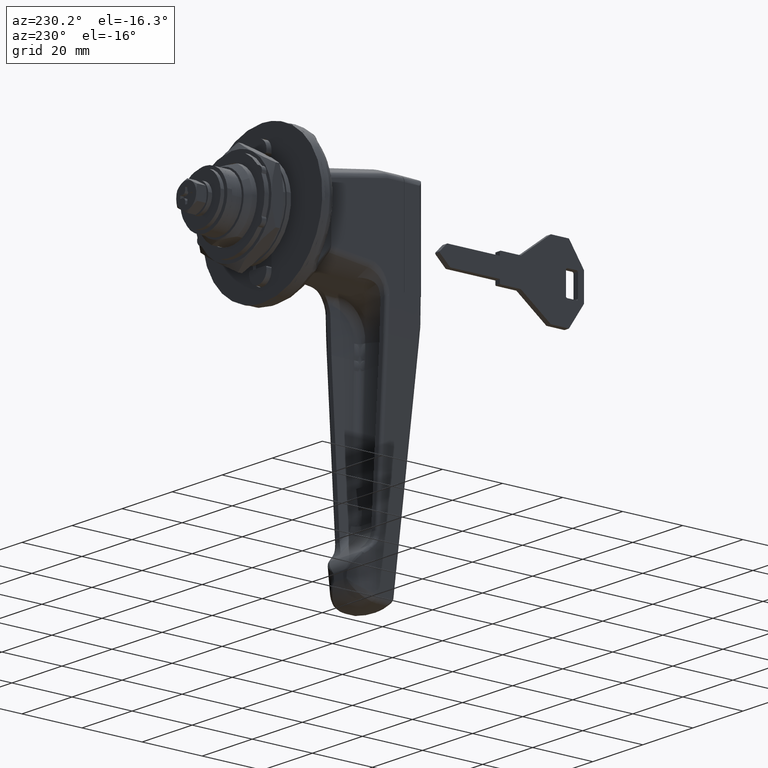
[diagram: clean part render]
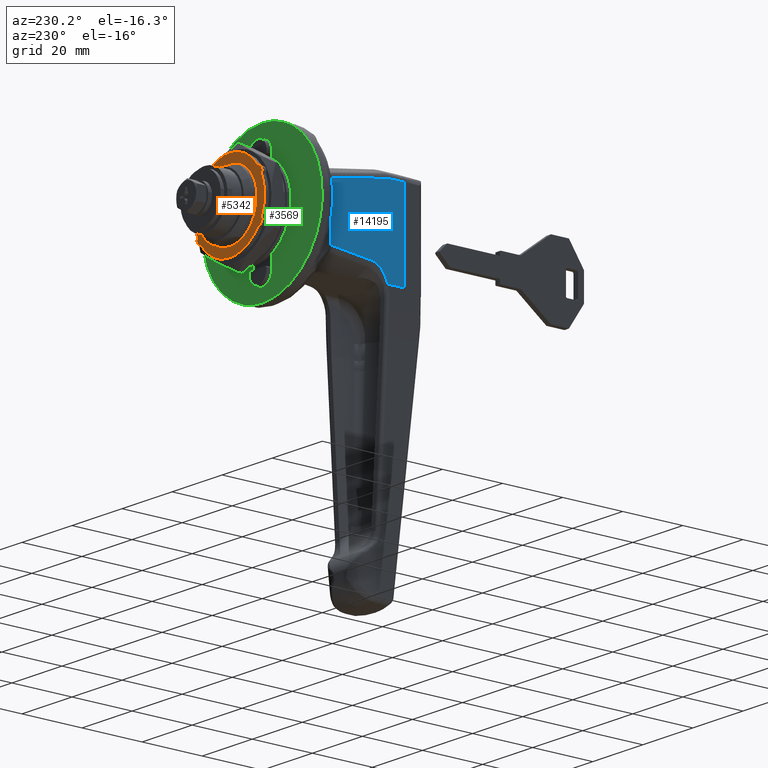
[diagram: same view with three faces highlighted in distinct colors, each labeled with its STEP entity id]
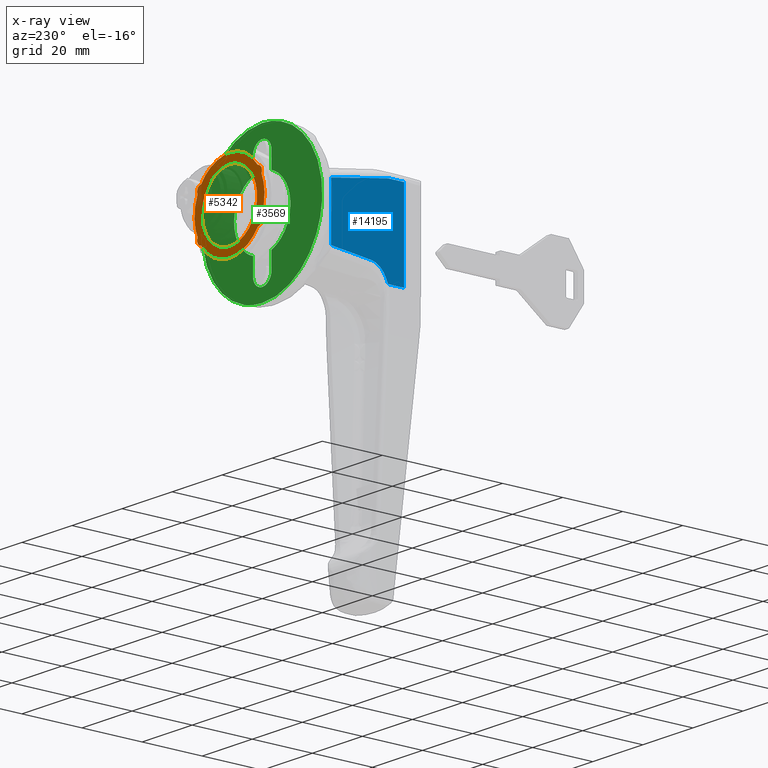
[diagram: x-ray of the same camera — body ghosted, the three highlighted faces saturated]
A machine part, auxiliary view with three faces highlighted in distinct colors.
The next image is the same camera in x-ray (body ghosted, the three faces saturated) — at least one of them is partly hidden behind the body in this view.
Their STEP definitions:

[orange] entity #5342 — the highlighted face is a freeform B-spline surface patch.
#4037=CARTESIAN_POINT('',(60.395902999999912,-10.979482782621901,-0.671533935188096));
#4038=VERTEX_POINT('',#4037);
#4044=CARTESIAN_POINT('',(60.395902999999898,0.0,-11.0));
#4045=VERTEX_POINT('',#4044);
#4046=CARTESIAN_POINT('',(60.395902999999898,0.0,-11.0));
#4047=CARTESIAN_POINT('',(60.395902999999905,-10.347766735387305,-11.000000000000002));
#4048=CARTESIAN_POINT('',(60.395902999999905,-10.979482782621902,-0.671533935188096));
#4056=(BOUNDED_CURVE()B_SPLINE_CURVE(2,(#4046,#4047,#4048),.UNSPECIFIED.,.F.,.U.)B_SPLINE_CURVE_WITH_KNOTS((3,3),(0.500000000000000,0.739332962232393),.UNSPECIFIED.)CURVE()GEOMETRIC_REPRESENTATION_ITEM()RATIONAL_B_SPLINE_CURVE((1.0,0.719603993294384,0.976072041652679))REPRESENTATION_ITEM(''));
#4057=EDGE_CURVE('',#4045,#4038,#4056,.T.);
#4059=CARTESIAN_POINT('',(60.395902999999912,10.923104789983951,1.298376581362203));
#4060=VERTEX_POINT('',#4059);
#4061=CARTESIAN_POINT('',(60.395902999999912,10.923104789983942,1.298376581362203));
#4062=CARTESIAN_POINT('',(60.395902999999883,10.999999999999996,0.651465316310329));
#4063=CARTESIAN_POINT('',(60.395902999999898,11.0,0.0));
#4064=CARTESIAN_POINT('',(60.395902999999898,11.0,-11.0));
#4065=CARTESIAN_POINT('',(60.395902999999898,0.0,-11.0));
#4073=(BOUNDED_CURVE()B_SPLINE_CURVE(2,(#4061,#4062,#4063,#4064,#4065),.UNSPECIFIED.,.F.,.U.)B_SPLINE_CURVE_WITH_KNOTS((3,2,3),(0.229562473511378,0.250000000000000,0.500000000000000),.UNSPECIFIED.)CURVE()GEOMETRIC_REPRESENTATION_ITEM()RATIONAL_B_SPLINE_CURVE((0.956026754179524,0.976055948328650,1.0,0.707106781186548,1.0))REPRESENTATION_ITEM(''));
#4074=EDGE_CURVE('',#4060,#4045,#4073,.T.);
#4118=CARTESIAN_POINT('',(60.395902999999898,0.0,11.0));
#4119=VERTEX_POINT('',#4118);
#4120=CARTESIAN_POINT('',(60.395902999999898,0.0,11.0));
#4121=CARTESIAN_POINT('',(60.395902999999905,9.769919785216697,11.0));
#4122=CARTESIAN_POINT('',(60.395902999999912,10.923104789983942,1.298376581362203));
#4130=(BOUNDED_CURVE()B_SPLINE_CURVE(2,(#4120,#4121,#4122),.UNSPECIFIED.,.F.,.U.)B_SPLINE_CURVE_WITH_KNOTS((3,3),(0.0,0.229562473511378),.UNSPECIFIED.)CURVE()GEOMETRIC_REPRESENTATION_ITEM()RATIONAL_B_SPLINE_CURVE((1.0,0.731050832857898,0.956026754179524))REPRESENTATION_ITEM(''));
#4131=EDGE_CURVE('',#4119,#4060,#4130,.T.);
#4133=CARTESIAN_POINT('',(60.395902999999912,-10.979482782621901,-0.671533935188096));
#4134=CARTESIAN_POINT('',(60.395902999999898,-10.999999999999998,-0.336080396590001));
#4135=CARTESIAN_POINT('',(60.395902999999898,-11.0,0.0));
#4136=CARTESIAN_POINT('',(60.395902999999898,-11.0,11.0));
#4137=CARTESIAN_POINT('',(60.395902999999898,0.0,11.0));
#4145=(BOUNDED_CURVE()B_SPLINE_CURVE(2,(#4133,#4134,#4135,#4136,#4137),.UNSPECIFIED.,.F.,.U.)B_SPLINE_CURVE_WITH_KNOTS((3,2,3),(0.739332962232392,0.750000000000000,1.0),.UNSPECIFIED.)CURVE()GEOMETRIC_REPRESENTATION_ITEM()RATIONAL_B_SPLINE_CURVE((0.976072041652679,0.987502787892163,1.0,0.707106781186548,1.0))REPRESENTATION_ITEM(''));
#4146=EDGE_CURVE('',#4038,#4119,#4145,.T.);
#4414=CARTESIAN_POINT('',(60.395902999999898,-12.773809982891500,5.729727047433930));
#4415=VERTEX_POINT('',#4414);
#4421=CARTESIAN_POINT('',(60.395902999999898,-11.348994046675420,8.197580640393969));
#4422=VERTEX_POINT('',#4421);
#4423=CARTESIAN_POINT('',(60.395902999999898,-11.348994046675420,8.197580640393980));
#4424=CARTESIAN_POINT('',(60.395902999999898,-12.269609458662067,8.148412596946514));
#4425=CARTESIAN_POINT('',(60.395902999999898,-12.730573186433530,7.350000000000032));
#4426=CARTESIAN_POINT('',(60.395902999999898,-13.191536914204997,6.551587403053548));
#4427=CARTESIAN_POINT('',(60.395902999999898,-12.773809982891590,5.729727047433887));
#4435=(BOUNDED_CURVE()B_SPLINE_CURVE(2,(#4423,#4424,#4425,#4426,#4427),.UNSPECIFIED.,.F.,.U.)B_SPLINE_CURVE_WITH_KNOTS((3,2,3),(0.0,0.500000000000000,1.0),.UNSPECIFIED.)CURVE()GEOMETRIC_REPRESENTATION_ITEM()RATIONAL_B_SPLINE_CURVE((1.0,0.879054921630884,1.0,0.879054921630884,1.0))REPRESENTATION_ITEM(''));
#4436=EDGE_CURVE('',#4422,#4415,#4435,.T.);
#4461=CARTESIAN_POINT('',(60.395902999999898,-12.773810244207160,-5.729727030582530));
#4462=VERTEX_POINT('',#4461);
#4468=CARTESIAN_POINT('',(60.395902999999898,-12.773809982891500,5.729727047433930));
#4469=CARTESIAN_POINT('',(60.395902999999905,-15.343894784484002,0.000000067032631));
#4470=CARTESIAN_POINT('',(60.395902999999898,-12.773810244207169,-5.729727030582525));
#4478=(BOUNDED_CURVE()B_SPLINE_CURVE(2,(#4468,#4469,#4470),.UNSPECIFIED.,.F.,.U.)CURVE()GEOMETRIC_REPRESENTATION_ITEM()QUASI_UNIFORM_CURVE()RATIONAL_B_SPLINE_CURVE((1.0,0.912415015655414,1.0))REPRESENTATION_ITEM(''));
#4479=EDGE_CURVE('',#4415,#4462,#4478,.T.);
#4500=CARTESIAN_POINT('',(60.395902999999898,-11.348994046675420,-8.197580640393980));
#4501=VERTEX_POINT('',#4500);
#4507=CARTESIAN_POINT('',(60.395902999999898,-12.773810244207160,-5.729727030582530));
#4508=CARTESIAN_POINT('',(60.395902999999898,-13.191536895913377,-6.551587490799718));
#4509=CARTESIAN_POINT('',(60.395902999999898,-12.730573160588470,-7.350000044764986));
#4510=CARTESIAN_POINT('',(60.395902999999898,-12.269609425263557,-8.148412598730255));
#4511=CARTESIAN_POINT('',(60.395902999999898,-11.348994046675420,-8.197580640393980));
#4519=(BOUNDED_CURVE()B_SPLINE_CURVE(2,(#4507,#4508,#4509,#4510,#4511),.UNSPECIFIED.,.F.,.U.)B_SPLINE_CURVE_WITH_KNOTS((3,2,3),(0.0,0.500000000000000,1.0),.UNSPECIFIED.)CURVE()GEOMETRIC_REPRESENTATION_ITEM()RATIONAL_B_SPLINE_CURVE((1.0,0.879054928878454,1.0,0.879054928878454,1.0))REPRESENTATION_ITEM(''));
#4520=EDGE_CURVE('',#4462,#4501,#4519,.T.);
#4541=CARTESIAN_POINT('',(60.395902999999898,11.348994287338440,-8.197580659314040));
#4542=VERTEX_POINT('',#4541);
#4548=CARTESIAN_POINT('',(60.395902999999898,-11.348994046675420,-8.197580640393980));
#4549=CARTESIAN_POINT('',(60.395902999999905,-7.157803374540727,-14.000000032102946));
#4550=CARTESIAN_POINT('',(60.395902999999898,0.000000062790389,-14.0));
#4551=CARTESIAN_POINT('',(60.395902999999905,7.157803500121501,-13.999999967897057));
#4552=CARTESIAN_POINT('',(60.395902999999898,11.348994287338440,-8.197580659314035));
#4560=(BOUNDED_CURVE()B_SPLINE_CURVE(2,(#4548,#4549,#4550,#4551,#4552),.UNSPECIFIED.,.F.,.U.)B_SPLINE_CURVE_WITH_KNOTS((3,2,3),(0.0,0.500000000000000,1.0),.UNSPECIFIED.)CURVE()GEOMETRIC_REPRESENTATION_ITEM()RATIONAL_B_SPLINE_CURVE((1.0,0.890376740290604,1.0,0.890376740290604,1.0))REPRESENTATION_ITEM(''));
#4561=EDGE_CURVE('',#4501,#4542,#4560,.T.);
#4582=CARTESIAN_POINT('',(60.395902999999898,12.773809982891819,-5.729727047433920));
#4583=VERTEX_POINT('',#4582);
#4589=CARTESIAN_POINT('',(60.395902999999898,11.348994287338440,-8.197580659314040));
#4590=CARTESIAN_POINT('',(60.395902999999898,12.269609613398478,-8.148412458716477));
#4591=CARTESIAN_POINT('',(60.395902999999898,12.730573246261550,-7.349999896375232));
#4592=CARTESIAN_POINT('',(60.395902999999898,13.191536879124621,-6.551587334033987));
#4593=CARTESIAN_POINT('',(60.395902999999898,12.773809982891830,-5.729727047433920));
#4601=(BOUNDED_CURVE()B_SPLINE_CURVE(2,(#4589,#4590,#4591,#4592,#4593),.UNSPECIFIED.,.F.,.U.)B_SPLINE_CURVE_WITH_KNOTS((3,2,3),(0.0,0.500000000000000,1.0),.UNSPECIFIED.)CURVE()GEOMETRIC_REPRESENTATION_ITEM()RATIONAL_B_SPLINE_CURVE((1.0,0.879054938408031,1.0,0.879054938408031,1.0))REPRESENTATION_ITEM(''));
#4602=EDGE_CURVE('',#4542,#4583,#4601,.T.);
#4623=CARTESIAN_POINT('',(60.395902999999898,12.773810244207160,5.729727030582550));
#4624=VERTEX_POINT('',#4623);
#4630=CARTESIAN_POINT('',(60.395902999999898,12.773809982891819,-5.729727047433920));
#4631=CARTESIAN_POINT('',(60.395902999999898,15.343894784483973,-0.000000067032536));
#4632=CARTESIAN_POINT('',(60.395902999999898,12.773810244207160,5.729727030582547));
#4640=(BOUNDED_CURVE()B_SPLINE_CURVE(2,(#4630,#4631,#4632),.UNSPECIFIED.,.F.,.U.)CURVE()GEOMETRIC_REPRESENTATION_ITEM()QUASI_UNIFORM_CURVE()RATIONAL_B_SPLINE_CURVE((1.0,0.912415015655416,1.0))REPRESENTATION_ITEM(''));
#4641=EDGE_CURVE('',#4583,#4624,#4640,.T.);
#4662=CARTESIAN_POINT('',(60.395902999999898,11.348994046675760,8.197580640393980));
#4663=VERTEX_POINT('',#4662);
#4669=CARTESIAN_POINT('',(60.395902999999898,12.773810244207160,5.729727030582550));
#4670=CARTESIAN_POINT('',(60.395902999999898,13.191536895913595,6.551587490799612));
#4671=CARTESIAN_POINT('',(60.395902999999898,12.730573160588740,7.350000044764898));
#4672=CARTESIAN_POINT('',(60.395902999999898,12.269609425263893,8.148412598730184));
#4673=CARTESIAN_POINT('',(60.395902999999898,11.348994046675760,8.197580640393973));
#4681=(BOUNDED_CURVE()B_SPLINE_CURVE(2,(#4669,#4670,#4671,#4672,#4673),.UNSPECIFIED.,.F.,.U.)B_SPLINE_CURVE_WITH_KNOTS((3,2,3),(0.0,0.500000000000000,1.0),.UNSPECIFIED.)CURVE()GEOMETRIC_REPRESENTATION_ITEM()RATIONAL_B_SPLINE_CURVE((1.0,0.879054928878457,1.0,0.879054928878457,1.0))REPRESENTATION_ITEM(''));
#4682=EDGE_CURVE('',#4624,#4663,#4681,.T.);
#4704=CARTESIAN_POINT('',(60.395902999999898,11.348994046675760,8.197580640393980));
#4705=CARTESIAN_POINT('',(60.395902999999905,7.157803397729381,14.000000000000005));
#4706=CARTESIAN_POINT('',(60.395902999999898,0.0,14.0));
#4707=CARTESIAN_POINT('',(60.395902999999905,-7.157803397729263,13.999999999999993));
#4708=CARTESIAN_POINT('',(60.395902999999898,-11.348994046675420,8.197580640393969));
#4716=(BOUNDED_CURVE()B_SPLINE_CURVE(2,(#4704,#4705,#4706,#4707,#4708),.UNSPECIFIED.,.F.,.U.)B_SPLINE_CURVE_WITH_KNOTS((3,2,3),(0.0,0.500000000000000,1.0),.UNSPECIFIED.)CURVE()GEOMETRIC_REPRESENTATION_ITEM()RATIONAL_B_SPLINE_CURVE((1.0,0.890376741311448,1.0,0.890376741311448,1.0))REPRESENTATION_ITEM(''));
#4717=EDGE_CURVE('',#4663,#4422,#4716,.T.);
#5321=CARTESIAN_POINT('',(60.395902999999898,-15.398600147824890,15.398599945730570));
#5322=CARTESIAN_POINT('',(60.395902999999890,-15.398600147824890,-15.398600696749090));
#5323=CARTESIAN_POINT('',(60.395902999999898,15.398600648503971,15.398599945730570));
#5324=CARTESIAN_POINT('',(60.395902999999890,15.398600648503971,-15.398600696749090));
#5325=B_SPLINE_SURFACE_WITH_KNOTS('',1,1,((#5321,#5323),(#5322,#5324)),.UNSPECIFIED.,.F.,.F.,.U.,(2,2),(2,2),(0.0,30.797200642479659),(0.0,30.797200796328859),.UNSPECIFIED.);
#5326=ORIENTED_EDGE('',*,*,#4717,.T.);
#5327=ORIENTED_EDGE('',*,*,#4436,.T.);
#5328=ORIENTED_EDGE('',*,*,#4479,.T.);
#5329=ORIENTED_EDGE('',*,*,#4520,.T.);
#5330=ORIENTED_EDGE('',*,*,#4561,.T.);
#5331=ORIENTED_EDGE('',*,*,#4602,.T.);
#5332=ORIENTED_EDGE('',*,*,#4641,.T.);
#5333=ORIENTED_EDGE('',*,*,#4682,.T.);
#5334=EDGE_LOOP('',(#5326,#5327,#5328,#5329,#5330,#5331,#5332,#5333));
#5335=FACE_OUTER_BOUND('',#5334,.T.);
#5336=ORIENTED_EDGE('',*,*,#4057,.T.);
#5337=ORIENTED_EDGE('',*,*,#4146,.T.);
#5338=ORIENTED_EDGE('',*,*,#4131,.T.);
#5339=ORIENTED_EDGE('',*,*,#4074,.T.);
#5340=EDGE_LOOP('',(#5336,#5337,#5338,#5339));
#5341=FACE_BOUND('',#5340,.T.);
#5342=ADVANCED_FACE('',(#5335,#5341),#5325,.T.);

[blue] entity #14195 — the highlighted face is a freeform B-spline surface patch.
#6940=CARTESIAN_POINT('',(-31.440940997918950,12.500000000000000,-15.848482385090350));
#6941=VERTEX_POINT('',#6940);
#7037=CARTESIAN_POINT('',(-25.758472494422051,12.500000000000000,-10.478856147320119));
#7038=VERTEX_POINT('',#7037);
#7071=CARTESIAN_POINT('',(-25.758472494422051,12.500000000000000,-10.478856147320119));
#7072=CARTESIAN_POINT('',(-26.964024350658839,12.500000000000000,-10.611114079313030));
#7073=CARTESIAN_POINT('',(-28.057582371419901,12.500000000000000,-11.271604073828991));
#7074=CARTESIAN_POINT('',(-29.055146826098898,12.500000000000000,-11.874115626659970));
#7075=CARTESIAN_POINT('',(-29.825635950977048,12.500000000000000,-12.841350418345000));
#7076=CARTESIAN_POINT('',(-30.717082000110850,12.500000000000000,-13.960428684074991));
#7077=CARTESIAN_POINT('',(-31.440940997918950,12.500000000000000,-15.848482385090350));
#7078=B_SPLINE_CURVE_WITH_KNOTS('',2,(#7071,#7072,#7073,#7074,#7075,#7076,#7077),.UNSPECIFIED.,.F.,.U.,(3,2,2,3),(0.0,0.285714285714285,0.571428571428571,1.0),.UNSPECIFIED.);
#7079=EDGE_CURVE('',#7038,#6941,#7078,.T.);
#7106=CARTESIAN_POINT('',(-12.500000000000000,12.500000000000000,-9.011410562829541));
#7107=VERTEX_POINT('',#7106);
#7136=CARTESIAN_POINT('',(-12.500000000000000,12.500000000000000,-9.011410562829541));
#7137=CARTESIAN_POINT('',(-16.918892132413259,12.500000000000000,-9.505968378474359));
#7138=CARTESIAN_POINT('',(-21.338430364427520,12.500000000000000,-9.994688639473488));
#7139=CARTESIAN_POINT('',(-25.758472494422051,12.500000000000000,-10.478856147320140));
#7140=QUASI_UNIFORM_CURVE('',3,(#7136,#7137,#7138,#7139),.UNSPECIFIED.,.F.,.U.);
#7141=EDGE_CURVE('',#7107,#7038,#7140,.T.);
#10504=CARTESIAN_POINT('',(-31.397209567573150,12.500000000000000,12.332614929181220));
#10505=VERTEX_POINT('',#10504);
#10630=CARTESIAN_POINT('',(-12.500000000000000,12.500000000000000,8.994391568174301));
#10631=VERTEX_POINT('',#10630);
#10654=CARTESIAN_POINT('',(-31.397209567573150,12.500000000000000,12.332614929181220));
#10655=CARTESIAN_POINT('',(-28.245791829730109,12.500000000000000,11.786949721335089));
#10656=CARTESIAN_POINT('',(-25.095151901358999,12.500000000000000,11.236831968159780));
#10657=CARTESIAN_POINT('',(-18.795878208088251,12.500000000000000,10.125120313847599));
#10658=CARTESIAN_POINT('',(-15.647261801303889,12.500000000000000,9.563549309969423));
#10659=CARTESIAN_POINT('',(-12.500000000000000,12.500000000000000,8.994391568174301));
#10660=B_SPLINE_CURVE_WITH_KNOTS('',3,(#10654,#10655,#10656,#10657,#10658,#10659),.UNSPECIFIED.,.F.,.U.,(4,2,4),(0.0,0.500000000000000,1.0),.UNSPECIFIED.);
#10661=EDGE_CURVE('',#10505,#10631,#10660,.T.);
#10692=CARTESIAN_POINT('',(-36.799999999999997,12.500000000000000,12.332614929181240));
#10693=VERTEX_POINT('',#10692);
#10713=CARTESIAN_POINT('',(-36.799999999999997,12.500000000000000,12.332614929181240));
#10714=CARTESIAN_POINT('',(-31.397209567573150,12.500000000000000,12.332614929181220));
#10715=QUASI_UNIFORM_CURVE('',1,(#10713,#10714),.UNSPECIFIED.,.F.,.U.);
#10716=EDGE_CURVE('',#10693,#10505,#10715,.T.);
#13670=CARTESIAN_POINT('',(-12.500000000000000,12.500000000000000,8.994391568174301));
#13671=CARTESIAN_POINT('',(-12.500000000000000,12.500000000000000,-9.011410562829541));
#13672=QUASI_UNIFORM_CURVE('',1,(#13670,#13671),.UNSPECIFIED.,.F.,.U.);
#13673=EDGE_CURVE('',#10631,#7107,#13672,.T.);
#13897=CARTESIAN_POINT('',(-36.799999999999997,12.500000000000000,-15.848482385090300));
#13898=VERTEX_POINT('',#13897);
#13912=CARTESIAN_POINT('',(-31.440940997918950,12.500000000000000,-15.848482385090350));
#13913=CARTESIAN_POINT('',(-36.799999999999997,12.500000000000000,-15.848482385090300));
#13914=QUASI_UNIFORM_CURVE('',1,(#13912,#13913),.UNSPECIFIED.,.F.,.U.);
#13915=EDGE_CURVE('',#6941,#13898,#13914,.T.);
#14122=CARTESIAN_POINT('',(-36.799999999999997,12.500000000000000,-15.848482385090300));
#14123=CARTESIAN_POINT('',(-36.799999999999997,12.500000000000000,12.332614929181240));
#14124=QUASI_UNIFORM_CURVE('',1,(#14122,#14123),.UNSPECIFIED.,.F.,.U.);
#14125=EDGE_CURVE('',#13898,#10693,#14124,.T.);
#14181=CARTESIAN_POINT('',(-11.286215133914780,12.500000000000000,-17.256127876773800));
#14182=CARTESIAN_POINT('',(-38.013783779790572,12.500000000000000,-17.256127876773800));
#14183=CARTESIAN_POINT('',(-11.286215133914780,12.500000000000000,13.740261428699270));
#14184=CARTESIAN_POINT('',(-38.013783779790572,12.500000000000000,13.740261428699270));
#14185=B_SPLINE_SURFACE_WITH_KNOTS('',1,1,((#14181,#14183),(#14182,#14184)),.UNSPECIFIED.,.F.,.F.,.U.,(2,2),(2,2),(0.0,26.727568645875781),(0.0,30.996389305473070),.UNSPECIFIED.);
#14186=ORIENTED_EDGE('',*,*,#7141,.T.);
#14187=ORIENTED_EDGE('',*,*,#7079,.T.);
#14188=ORIENTED_EDGE('',*,*,#13915,.T.);
#14189=ORIENTED_EDGE('',*,*,#14125,.T.);
#14190=ORIENTED_EDGE('',*,*,#10716,.T.);
#14191=ORIENTED_EDGE('',*,*,#10661,.T.);
#14192=ORIENTED_EDGE('',*,*,#13673,.T.);
#14193=EDGE_LOOP('',(#14186,#14187,#14188,#14189,#14190,#14191,#14192));
#14194=FACE_OUTER_BOUND('',#14193,.T.);
#14195=ADVANCED_FACE('',(#14194),#14185,.T.);

[green] entity #3569 — the highlighted face is a freeform B-spline surface patch.
#3203=CARTESIAN_POINT('',(-2.255141E-017,-23.926017600802730,1.882994096402696));
#3204=VERTEX_POINT('',#3203);
#3210=CARTESIAN_POINT('',(0.0,0.000000313432878,24.0));
#3211=VERTEX_POINT('',#3210);
#3212=CARTESIAN_POINT('',(0.0,0.000000313432878,24.0));
#3213=CARTESIAN_POINT('',(0.0,-22.185393996174241,23.999999999999996));
#3214=CARTESIAN_POINT('',(-2.255141E-017,-23.926017600802730,1.882994096402695));
#3222=(BOUNDED_CURVE()B_SPLINE_CURVE(2,(#3212,#3213,#3214),.UNSPECIFIED.,.F.,.U.)B_SPLINE_CURVE_WITH_KNOTS((3,3),(0.0,0.236331474027944),.UNSPECIFIED.)CURVE()GEOMETRIC_REPRESENTATION_ITEM()RATIONAL_B_SPLINE_CURVE((1.0,0.723120455460111,0.969723718034603))REPRESENTATION_ITEM(''));
#3223=EDGE_CURVE('',#3211,#3204,#3222,.T.);
#3225=CARTESIAN_POINT('',(-2.255141E-017,23.926018227668489,-1.882994096402701));
#3226=VERTEX_POINT('',#3225);
#3227=CARTESIAN_POINT('',(-2.255141E-017,23.926018227668486,-1.882994096402701));
#3228=CARTESIAN_POINT('',(0.0,24.000000313432885,-0.942950411497736));
#3229=CARTESIAN_POINT('',(0.0,24.000000313432881,1.919159E-023));
#3230=CARTESIAN_POINT('',(0.0,24.000000313432871,23.999999999999996));
#3231=CARTESIAN_POINT('',(0.0,0.000000313432878,24.0));
#3239=(BOUNDED_CURVE()B_SPLINE_CURVE(2,(#3227,#3228,#3229,#3230,#3231),.UNSPECIFIED.,.F.,.U.)B_SPLINE_CURVE_WITH_KNOTS((3,2,3),(0.736331474027944,0.750000000000000,1.0),.UNSPECIFIED.)CURVE()GEOMETRIC_REPRESENTATION_ITEM()RATIONAL_B_SPLINE_CURVE((0.969723718034603,0.983986325726437,1.0,0.707106781186548,1.0))REPRESENTATION_ITEM(''));
#3240=EDGE_CURVE('',#3226,#3211,#3239,.T.);
#3316=CARTESIAN_POINT('',(0.0,0.000000313432878,-24.0));
#3317=VERTEX_POINT('',#3316);
#3318=CARTESIAN_POINT('',(0.0,0.000000313432878,-24.0));
#3319=CARTESIAN_POINT('',(0.0,22.185394623039983,-23.999999999999993));
#3320=CARTESIAN_POINT('',(-2.255141E-017,23.926018227668486,-1.882994096402701));
#3328=(BOUNDED_CURVE()B_SPLINE_CURVE(2,(#3318,#3319,#3320),.UNSPECIFIED.,.F.,.U.)B_SPLINE_CURVE_WITH_KNOTS((3,3),(0.500000000000000,0.736331474027944),.UNSPECIFIED.)CURVE()GEOMETRIC_REPRESENTATION_ITEM()RATIONAL_B_SPLINE_CURVE((1.0,0.723120455460111,0.969723718034603))REPRESENTATION_ITEM(''));
#3329=EDGE_CURVE('',#3317,#3226,#3328,.T.);
#3331=CARTESIAN_POINT('',(-2.255141E-017,-23.926017600802730,1.882994096402695));
#3332=CARTESIAN_POINT('',(0.0,-23.999999686567119,0.942950411497734));
#3333=CARTESIAN_POINT('',(0.0,-23.999999686567119,1.919159E-023));
#3334=CARTESIAN_POINT('',(0.0,-23.999999686567126,-23.999999999999996));
#3335=CARTESIAN_POINT('',(0.0,0.000000313432878,-24.0));
#3343=(BOUNDED_CURVE()B_SPLINE_CURVE(2,(#3331,#3332,#3333,#3334,#3335),.UNSPECIFIED.,.F.,.U.)B_SPLINE_CURVE_WITH_KNOTS((3,2,3),(0.236331474027944,0.250000000000000,0.500000000000000),.UNSPECIFIED.)CURVE()GEOMETRIC_REPRESENTATION_ITEM()RATIONAL_B_SPLINE_CURVE((0.969723718034603,0.983986325726437,1.0,0.707106781186548,1.0))REPRESENTATION_ITEM(''));
#3344=EDGE_CURVE('',#3204,#3317,#3343,.T.);
#3460=CARTESIAN_POINT('',(0.0,-26.390274202600960,26.397599906966690));
#3461=CARTESIAN_POINT('',(0.0,26.390275687773599,26.397599906966690));
#3462=CARTESIAN_POINT('',(0.0,-26.390274202600960,-26.397601194427011));
#3463=CARTESIAN_POINT('',(0.0,26.390275687773599,-26.397601194427011));
#3464=B_SPLINE_SURFACE_WITH_KNOTS('',1,1,((#3460,#3462),(#3461,#3463)),.UNSPECIFIED.,.F.,.F.,.U.,(2,2),(2,2),(0.0,52.780549890374573),(0.0,52.795201101393701),.UNSPECIFIED.);
#3465=ORIENTED_EDGE('',*,*,#3223,.T.);
#3466=ORIENTED_EDGE('',*,*,#3344,.T.);
#3467=ORIENTED_EDGE('',*,*,#3329,.T.);
#3468=ORIENTED_EDGE('',*,*,#3240,.T.);
#3469=EDGE_LOOP('',(#3465,#3466,#3467,#3468));
#3470=FACE_OUTER_BOUND('',#3469,.T.);
#3471=CARTESIAN_POINT('',(0.0,-3.700000000000000,10.624146915427920));
#3472=VERTEX_POINT('',#3471);
#3473=CARTESIAN_POINT('',(0.0,-3.700000000000000,-10.624146915427920));
#3474=VERTEX_POINT('',#3473);
#3475=CARTESIAN_POINT('',(0.0,-3.700000000000004,10.624146915427920));
#3476=CARTESIAN_POINT('',(0.0,-11.249999686567117,7.994759216905932));
#3477=CARTESIAN_POINT('',(0.0,-11.249999686567120,1.919159E-023));
#3478=CARTESIAN_POINT('',(0.0,-11.249999686567117,-7.994759216905935));
#3479=CARTESIAN_POINT('',(0.0,-3.700000000000001,-10.624146915427920));
#3487=(BOUNDED_CURVE()B_SPLINE_CURVE(2,(#3475,#3476,#3477,#3478,#3479),.UNSPECIFIED.,.F.,.U.)B_SPLINE_CURVE_WITH_KNOTS((3,2,3),(0.0,0.500000000000000,1.0),.UNSPECIFIED.)CURVE()GEOMETRIC_REPRESENTATION_ITEM()RATIONAL_B_SPLINE_CURVE((1.0,0.815134625920648,1.0,0.815134625920648,1.0))REPRESENTATION_ITEM(''));
#3488=EDGE_CURVE('',#3472,#3474,#3487,.T.);
#3489=ORIENTED_EDGE('',*,*,#3488,.F.);
#3490=CARTESIAN_POINT('',(0.0,-3.700000000000000,16.0));
#3491=VERTEX_POINT('',#3490);
#3492=CARTESIAN_POINT('',(0.0,-3.700000000000000,16.0));
#3493=CARTESIAN_POINT('',(0.0,-3.700000000000000,10.624146915427920));
#3494=QUASI_UNIFORM_CURVE('',1,(#3492,#3493),.UNSPECIFIED.,.F.,.U.);
#3495=EDGE_CURVE('',#3491,#3472,#3494,.T.);
#3496=ORIENTED_EDGE('',*,*,#3495,.F.);
#3497=CARTESIAN_POINT('',(0.0,3.700000000000000,16.0));
#3498=VERTEX_POINT('',#3497);
#3499=CARTESIAN_POINT('',(0.0,3.699999999999999,16.0));
#3500=CARTESIAN_POINT('',(0.0,3.699999999999999,19.700000000000006));
#3501=CARTESIAN_POINT('',(0.0,-9.619438E-016,19.699999999999999));
#3502=CARTESIAN_POINT('',(0.0,-3.700000000000001,19.700000000000006));
#3503=CARTESIAN_POINT('',(0.0,-3.700000000000001,16.0));
#3511=(BOUNDED_CURVE()B_SPLINE_CURVE(2,(#3499,#3500,#3501,#3502,#3503),.UNSPECIFIED.,.F.,.U.)B_SPLINE_CURVE_WITH_KNOTS((3,2,3),(0.0,0.500000000000000,1.0),.UNSPECIFIED.)CURVE()GEOMETRIC_REPRESENTATION_ITEM()RATIONAL_B_SPLINE_CURVE((1.0,0.707106781186548,1.0,0.707106781186548,1.0))REPRESENTATION_ITEM(''));
#3512=EDGE_CURVE('',#3498,#3491,#3511,.T.);
#3513=ORIENTED_EDGE('',*,*,#3512,.F.);
#3514=CARTESIAN_POINT('',(0.0,3.700000000000000,10.624146915427920));
#3515=VERTEX_POINT('',#3514);
#3516=CARTESIAN_POINT('',(0.0,3.700000000000000,10.624146915427920));
#3517=CARTESIAN_POINT('',(0.0,3.700000000000000,16.0));
#3518=QUASI_UNIFORM_CURVE('',1,(#3516,#3517),.UNSPECIFIED.,.F.,.U.);
#3519=EDGE_CURVE('',#3515,#3498,#3518,.T.);
#3520=ORIENTED_EDGE('',*,*,#3519,.F.);
#3521=CARTESIAN_POINT('',(0.0,3.700000000000000,-10.624146915427920));
#3522=VERTEX_POINT('',#3521);
#3523=CARTESIAN_POINT('',(0.0,3.699999999999998,-10.624146915427920));
#3524=CARTESIAN_POINT('',(0.0,11.249999686567120,-7.994759216905933));
#3525=CARTESIAN_POINT('',(0.0,11.249999686567120,-1.919159E-023));
#3526=CARTESIAN_POINT('',(0.0,11.249999686567120,7.994759216905930));
#3527=CARTESIAN_POINT('',(0.0,3.700000000000007,10.624146915427920));
#3535=(BOUNDED_CURVE()B_SPLINE_CURVE(2,(#3523,#3524,#3525,#3526,#3527),.UNSPECIFIED.,.F.,.U.)B_SPLINE_CURVE_WITH_KNOTS((3,2,3),(0.0,0.500000000000000,1.0),.UNSPECIFIED.)CURVE()GEOMETRIC_REPRESENTATION_ITEM()RATIONAL_B_SPLINE_CURVE((1.0,0.815134625920648,1.0,0.815134625920648,1.0))REPRESENTATION_ITEM(''));
#3536=EDGE_CURVE('',#3522,#3515,#3535,.T.);
#3537=ORIENTED_EDGE('',*,*,#3536,.F.);
#3538=CARTESIAN_POINT('',(0.0,3.700000000000000,-16.0));
#3539=VERTEX_POINT('',#3538);
#3540=CARTESIAN_POINT('',(0.0,3.700000000000000,-16.0));
#3541=CARTESIAN_POINT('',(0.0,3.700000000000000,-10.624146915427920));
#3542=QUASI_UNIFORM_CURVE('',1,(#3540,#3541),.UNSPECIFIED.,.F.,.U.);
#3543=EDGE_CURVE('',#3539,#3522,#3542,.T.);
#3544=ORIENTED_EDGE('',*,*,#3543,.F.);
#3545=CARTESIAN_POINT('',(0.0,-3.700000000000000,-16.0));
#3546=VERTEX_POINT('',#3545);
#3547=CARTESIAN_POINT('',(0.0,-3.699999999999999,-16.0));
#3548=CARTESIAN_POINT('',(0.0,-3.699999999999999,-19.700000000000006));
#3549=CARTESIAN_POINT('',(0.0,9.619438E-016,-19.699999999999999));
#3550=CARTESIAN_POINT('',(0.0,3.700000000000001,-19.700000000000006));
#3551=CARTESIAN_POINT('',(0.0,3.700000000000001,-16.0));
#3559=(BOUNDED_CURVE()B_SPLINE_CURVE(2,(#3547,#3548,#3549,#3550,#3551),.UNSPECIFIED.,.F.,.U.)B_SPLINE_CURVE_WITH_KNOTS((3,2,3),(0.0,0.500000000000000,1.0),.UNSPECIFIED.)CURVE()GEOMETRIC_REPRESENTATION_ITEM()RATIONAL_B_SPLINE_CURVE((1.0,0.707106781186548,1.0,0.707106781186548,1.0))REPRESENTATION_ITEM(''));
#3560=EDGE_CURVE('',#3546,#3539,#3559,.T.);
#3561=ORIENTED_EDGE('',*,*,#3560,.F.);
#3562=CARTESIAN_POINT('',(0.0,-3.700000000000000,-10.624146915427920));
#3563=CARTESIAN_POINT('',(0.0,-3.700000000000000,-16.0));
#3564=QUASI_UNIFORM_CURVE('',1,(#3562,#3563),.UNSPECIFIED.,.F.,.U.);
#3565=EDGE_CURVE('',#3474,#3546,#3564,.T.);
#3566=ORIENTED_EDGE('',*,*,#3565,.F.);
#3567=EDGE_LOOP('',(#3489,#3496,#3513,#3520,#3537,#3544,#3561,#3566));
#3568=FACE_BOUND('',#3567,.T.);
#3569=ADVANCED_FACE('',(#3470,#3568),#3464,.F.);